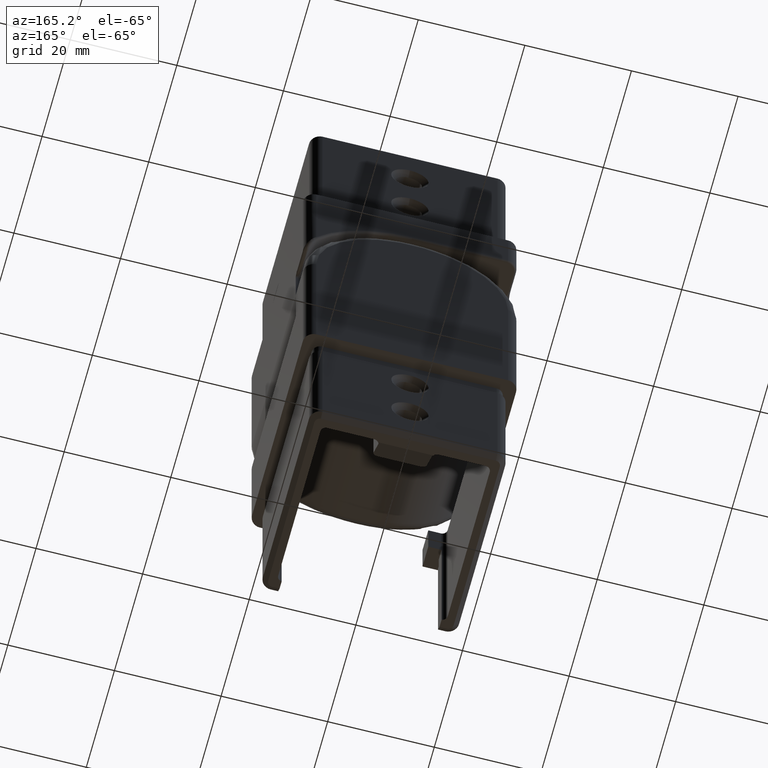
[diagram: clean part render]
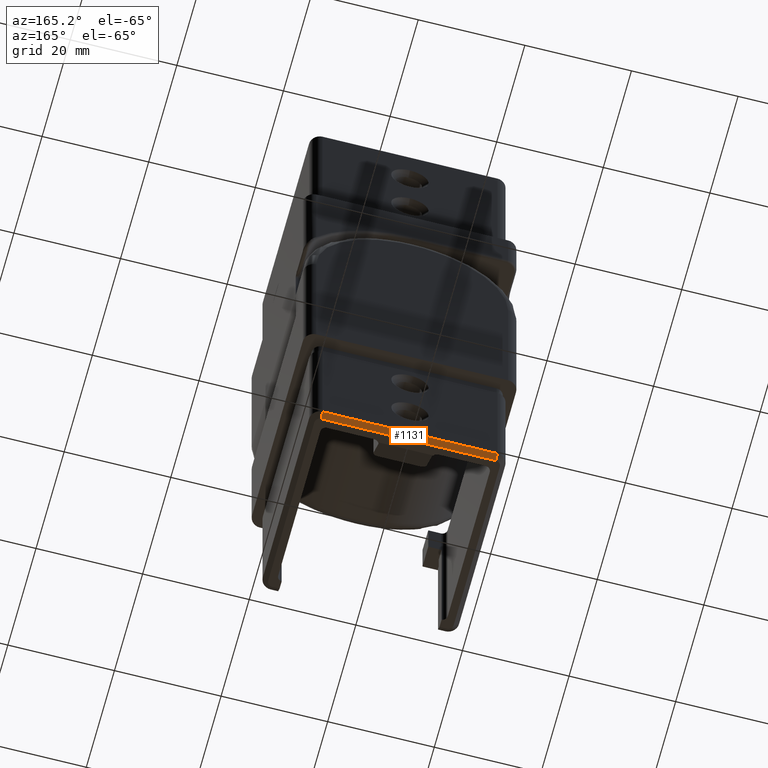
[diagram: same view with one face highlighted and labeled with its STEP entity id]
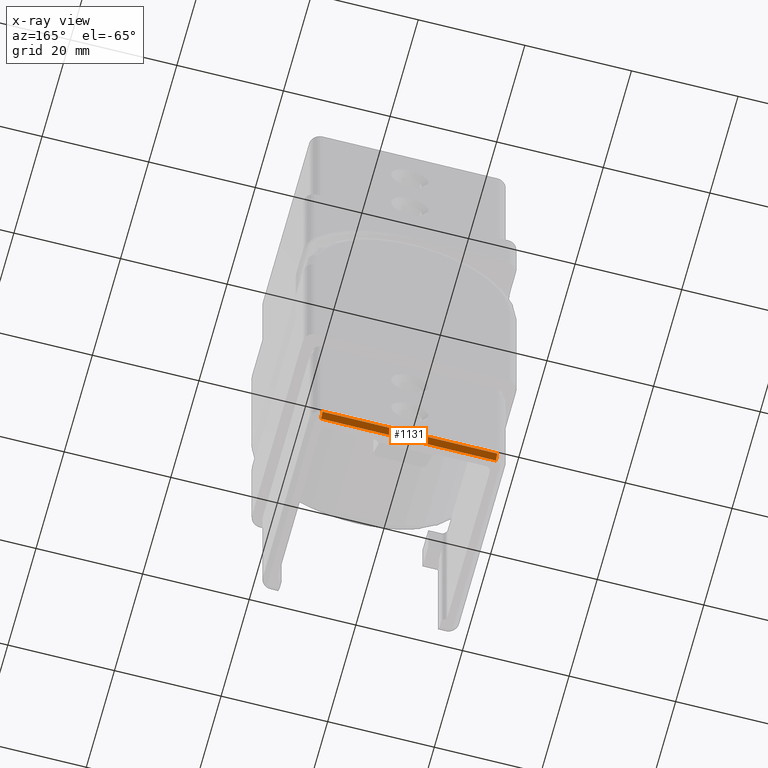
[diagram: x-ray of the same camera — body ghosted, the highlighted face saturated]
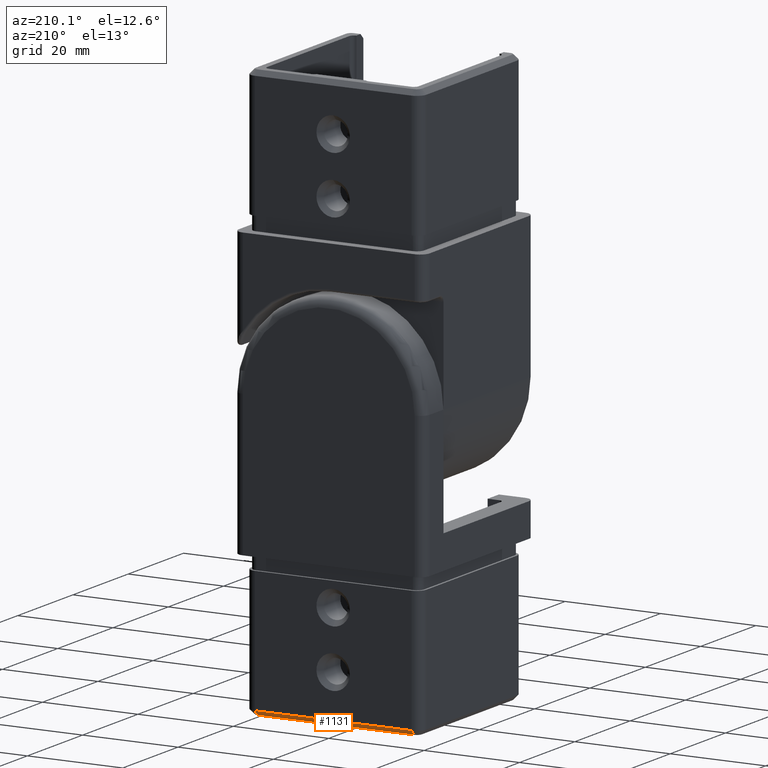
[diagram: same view with one face highlighted and labeled with its STEP entity id]
A machine part, auxiliary view. The second image highlights one B-rep face of the part: STEP entity #1131.
The next image is the same camera in x-ray: the body ghosted, the highlighted face saturated — about 0% of this face is hidden behind the body in this view.
A second angle (auxiliary view) of the same face is appended — the face is thin or edge-on in the first view.
In plain terms, the highlighted planar face has unit normal (-0, 0.7071, -0.7071).
Its self-contained STEP definition (entity closure, byte-faithful):
#1131 = ADVANCED_FACE ( 'NONE', ( #13001 ), #5234, .T. ) ;
#1518 = CARTESIAN_POINT ( 'NONE',  ( -16.39999999999998400, 17.40000000000001300, 36.99999999999999300 ) ) ;
#1549 = EDGE_LOOP ( 'NONE', ( #25794, #4265, #23699, #14671 ) ) ;
#2245 = VECTOR ( 'NONE', #5596, 1000.000000000000000 ) ;
#2369 = AXIS2_PLACEMENT_3D ( 'NONE', #7438, #3326, #7626 ) ;
#2452 = DIRECTION ( 'NONE',  ( -4.336808689941890600E-019, 0.7071067811865451300, -0.7071067811865500200 ) ) ;
#3326 = DIRECTION ( 'NONE',  ( -7.479480081382402800E-017, 0.7071067811865499000, 0.7071067811865451300 ) ) ;
#3736 = VECTOR ( 'NONE', #2452, 1000.000000000000100 ) ;
#4265 = ORIENTED_EDGE ( 'NONE', *, *, #17761, .F. ) ;
#5234 = PLANE ( 'NONE',  #2369 ) ;
#5596 = DIRECTION ( 'NONE',  ( -1.000000000000000000, -1.057758217059038000E-016, 0.0000000000000000000 ) ) ;
#6074 = CARTESIAN_POINT ( 'NONE',  ( -16.39999999999998400, 17.40000000000001300, 36.99999999999999300 ) ) ;
#7033 = LINE ( 'NONE', #23184, #3736 ) ;
#7395 = VERTEX_POINT ( 'NONE', #6074 ) ;
#7438 = CARTESIAN_POINT ( 'NONE',  ( -14.90000000000000400, 17.40000000000001300, 37.00000000000000000 ) ) ;
#7626 = DIRECTION ( 'NONE',  ( 1.000000000000000000, 1.057758217059038000E-016, 0.0000000000000000000 ) ) ;
#8828 = VECTOR ( 'NONE', #15870, 1000.000000000000100 ) ;
#10014 = LINE ( 'NONE', #1518, #2245 ) ;
#10071 = CARTESIAN_POINT ( 'NONE',  ( -16.39999999999998400, 17.40000000000001300, 36.99999999999999300 ) ) ;
#10624 = DIRECTION ( 'NONE',  ( 1.000000000000000000, 1.057758217059038000E-016, 0.0000000000000000000 ) ) ;
#10954 = CARTESIAN_POINT ( 'NONE',  ( 16.40000000000000600, 18.40000000000001600, 35.99999999999998600 ) ) ;
#11728 = LINE ( 'NONE', #10071, #8828 ) ;
#12825 = LINE ( 'NONE', #10954, #19302 ) ;
#13001 = FACE_OUTER_BOUND ( 'NONE', #1549, .T. ) ;
#14065 = CARTESIAN_POINT ( 'NONE',  ( 16.40000000000000600, 18.40000000000002000, 35.99999999999998600 ) ) ;
#14671 = ORIENTED_EDGE ( 'NONE', *, *, #23829, .F. ) ;
#15479 = EDGE_CURVE ( 'NONE', #7395, #24341, #11728, .T. ) ;
#15870 = DIRECTION ( 'NONE',  ( -4.336808689941890600E-019, 0.7071067811865451300, -0.7071067811865500200 ) ) ;
#17256 = CARTESIAN_POINT ( 'NONE',  ( 16.40000000000000600, 17.40000000000002000, 37.00000000000000000 ) ) ;
#17761 = EDGE_CURVE ( 'NONE', #24341, #25124, #12825, .T. ) ;
#19302 = VECTOR ( 'NONE', #10624, 1000.000000000000000 ) ;
#23184 = CARTESIAN_POINT ( 'NONE',  ( 16.40000000000000600, 17.40000000000002000, 37.00000000000000000 ) ) ;
#23608 = VERTEX_POINT ( 'NONE', #17256 ) ;
#23699 = ORIENTED_EDGE ( 'NONE', *, *, #15479, .F. ) ;
#23829 = EDGE_CURVE ( 'NONE', #23608, #7395, #10014, .T. ) ;
#24122 = CARTESIAN_POINT ( 'NONE',  ( -16.39999999999998400, 18.40000000000001300, 35.99999999999994300 ) ) ;
#24341 = VERTEX_POINT ( 'NONE', #24122 ) ;
#25124 = VERTEX_POINT ( 'NONE', #14065 ) ;
#25794 = ORIENTED_EDGE ( 'NONE', *, *, #25935, .T. ) ;
#25935 = EDGE_CURVE ( 'NONE', #23608, #25124, #7033, .T. ) ;